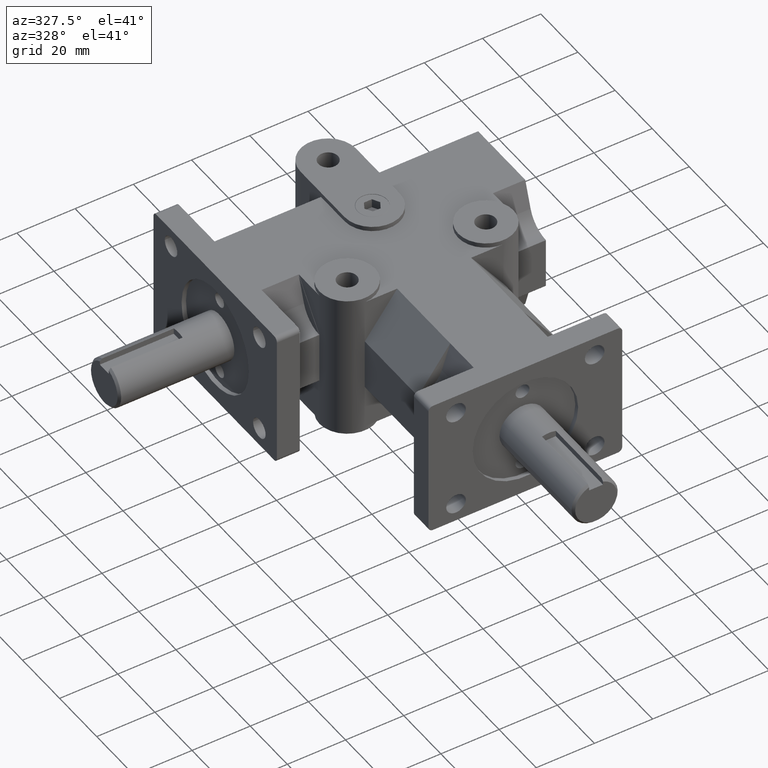
[diagram: clean part render]
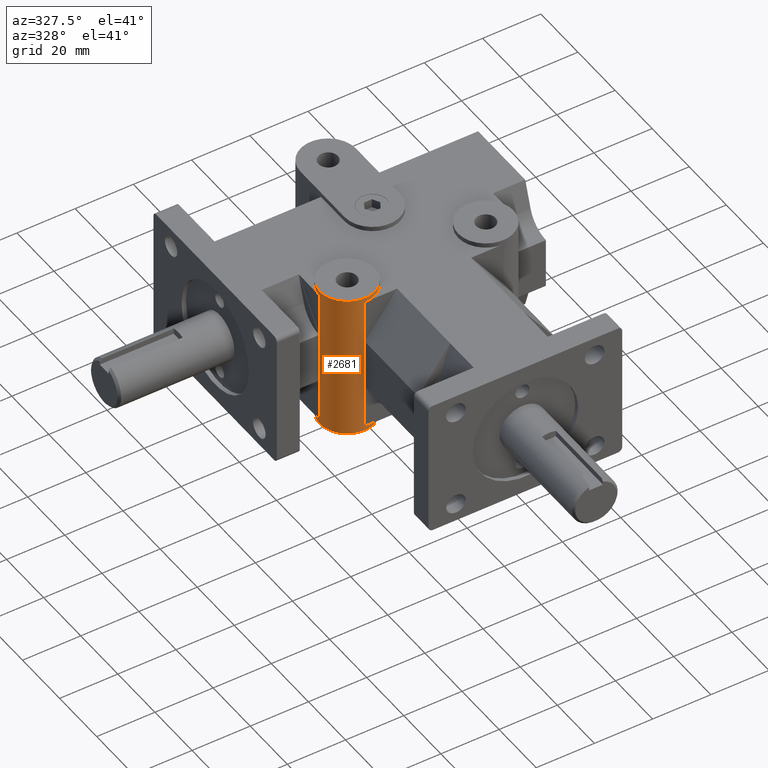
[diagram: same view with one face highlighted and labeled with its STEP entity id]
A machine part, auxiliary view. The second image highlights one B-rep face of the part: STEP entity #2681.
In plain terms, the highlighted cylindrical surface (bore or boss wall) has radius 9.525 mm, axis along (0, 0, 1).
Its self-contained STEP definition (entity closure, byte-faithful):
#288=FACE_OUTER_BOUND('',#473,.T.);
#473=EDGE_LOOP('',(#2366,#2367,#2368,#2369,#2370,#2371,#2372,#2373,#2374,
#2375,#2376,#2377,#2378,#2379));
#724=LINE('',#4461,#989);
#733=LINE('',#4480,#998);
#735=LINE('',#4484,#1000);
#736=LINE('',#4487,#1001);
#737=LINE('',#4489,#1002);
#738=LINE('',#4490,#1003);
#739=LINE('',#4491,#1004);
#740=LINE('',#4492,#1005);
#989=VECTOR('',#3666,1.);
#998=VECTOR('',#3685,1.);
#1000=VECTOR('',#3689,1.);
#1001=VECTOR('',#3692,0.375);
#1002=VECTOR('',#3693,1.);
#1003=VECTOR('',#3694,1.);
#1004=VECTOR('',#3695,0.375);
#1005=VECTOR('',#3696,1.);
#1077=CIRCLE('',#2800,0.375);
#1121=CIRCLE('',#2929,0.375);
#1122=CIRCLE('',#2931,0.375);
#1127=CIRCLE('',#2951,0.375);
#1229=VERTEX_POINT('',#4007);
#1230=VERTEX_POINT('',#4009);
#1273=VERTEX_POINT('',#4138);
#1307=VERTEX_POINT('',#4261);
#1349=VERTEX_POINT('',#4421);
#1350=VERTEX_POINT('',#4424);
#1365=VERTEX_POINT('',#4478);
#1366=VERTEX_POINT('',#4482);
#1367=VERTEX_POINT('',#4486);
#1368=VERTEX_POINT('',#4488);
#1494=EDGE_CURVE('',#1229,#1230,#1077,.T.);
#1694=EDGE_CURVE('',#1349,#1349,#1121,.T.);
#1695=EDGE_CURVE('',#1350,#1350,#1122,.T.);
#1713=EDGE_CURVE('',#1230,#1273,#724,.T.);
#1722=EDGE_CURVE('',#1365,#1229,#733,.T.);
#1724=EDGE_CURVE('',#1366,#1307,#735,.T.);
#1725=EDGE_CURVE('',#1349,#1367,#736,.T.);
#1726=EDGE_CURVE('',#1368,#1367,#737,.T.);
#1727=EDGE_CURVE('',#1273,#1368,#738,.T.);
#1728=EDGE_CURVE('',#1230,#1350,#739,.T.);
#1729=EDGE_CURVE('',#1307,#1365,#740,.T.);
#1730=EDGE_CURVE('',#1367,#1366,#1127,.T.);
#2366=ORIENTED_EDGE('',*,*,#1694,.T.);
#2367=ORIENTED_EDGE('',*,*,#1725,.T.);
#2368=ORIENTED_EDGE('',*,*,#1726,.F.);
#2369=ORIENTED_EDGE('',*,*,#1727,.F.);
#2370=ORIENTED_EDGE('',*,*,#1713,.F.);
#2371=ORIENTED_EDGE('',*,*,#1728,.T.);
#2372=ORIENTED_EDGE('',*,*,#1695,.T.);
#2373=ORIENTED_EDGE('',*,*,#1728,.F.);
#2374=ORIENTED_EDGE('',*,*,#1494,.F.);
#2375=ORIENTED_EDGE('',*,*,#1722,.F.);
#2376=ORIENTED_EDGE('',*,*,#1729,.F.);
#2377=ORIENTED_EDGE('',*,*,#1724,.F.);
#2378=ORIENTED_EDGE('',*,*,#1730,.F.);
#2379=ORIENTED_EDGE('',*,*,#1725,.F.);
#2548=CYLINDRICAL_SURFACE('',#2950,0.375);
#2681=ADVANCED_FACE('',(#288),#2548,.T.);
#2800=AXIS2_PLACEMENT_3D('',#4010,#3213,#3214);
#2929=AXIS2_PLACEMENT_3D('',#4422,#3623,#3624);
#2931=AXIS2_PLACEMENT_3D('',#4425,#3627,#3628);
#2950=AXIS2_PLACEMENT_3D('',#4485,#3690,#3691);
#2951=AXIS2_PLACEMENT_3D('',#4493,#3697,#3698);
#3213=DIRECTION('center_axis',(0.,0.,1.));
#3214=DIRECTION('ref_axis',(1.,0.,0.));
#3623=DIRECTION('center_axis',(0.,0.,-1.));
#3624=DIRECTION('ref_axis',(1.,0.,0.));
#3627=DIRECTION('center_axis',(0.,0.,1.));
#3628=DIRECTION('ref_axis',(1.,0.,0.));
#3666=DIRECTION('',(0.,0.,1.));
#3685=DIRECTION('',(0.,0.,-1.));
#3689=DIRECTION('',(0.,0.,-1.));
#3690=DIRECTION('center_axis',(0.,0.,1.));
#3691=DIRECTION('ref_axis',(1.,0.,0.));
#3692=DIRECTION('',(0.,0.,-1.));
#3693=DIRECTION('',(0.,0.,1.));
#3694=DIRECTION('',(0.,0.,1.));
#3695=DIRECTION('',(0.,0.,-1.));
#3696=DIRECTION('',(0.,0.,-1.));
#3697=DIRECTION('center_axis',(0.,0.,-1.));
#3698=DIRECTION('ref_axis',(1.,0.,0.));
#4007=CARTESIAN_POINT('',(-0.9375,1.9375,-0.9375));
#4009=CARTESIAN_POINT('',(-1.3125,2.3125,-0.9375));
#4010=CARTESIAN_POINT('Origin',(-0.9375,2.3125,-0.9375));
#4138=CARTESIAN_POINT('',(-1.3125,2.3125,-0.343749999999999));
#4261=CARTESIAN_POINT('',(-0.9375,1.9375,0.34375));
#4421=CARTESIAN_POINT('',(-1.3125,2.3125,1.));
#4422=CARTESIAN_POINT('Origin',(-0.9375,2.3125,1.));
#4424=CARTESIAN_POINT('',(-1.3125,2.3125,-1.));
#4425=CARTESIAN_POINT('Origin',(-0.9375,2.3125,-1.));
#4461=CARTESIAN_POINT('',(-1.3125,2.3125,0.));
#4478=CARTESIAN_POINT('',(-0.9375,1.9375,-0.34375));
#4480=CARTESIAN_POINT('',(-0.9375,1.9375,0.));
#4482=CARTESIAN_POINT('',(-0.9375,1.9375,0.9375));
#4484=CARTESIAN_POINT('',(-0.9375,1.9375,0.));
#4485=CARTESIAN_POINT('Origin',(-0.9375,2.3125,0.));
#4486=CARTESIAN_POINT('',(-1.3125,2.3125,0.9375));
#4487=CARTESIAN_POINT('',(-1.3125,2.3125,0.));
#4488=CARTESIAN_POINT('',(-1.3125,2.3125,0.343749999999999));
#4489=CARTESIAN_POINT('',(-1.3125,2.3125,0.));
#4490=CARTESIAN_POINT('',(-1.3125,2.3125,0.));
#4491=CARTESIAN_POINT('',(-1.3125,2.3125,0.));
#4492=CARTESIAN_POINT('',(-0.9375,1.9375,0.));
#4493=CARTESIAN_POINT('Origin',(-0.9375,2.3125,0.9375));